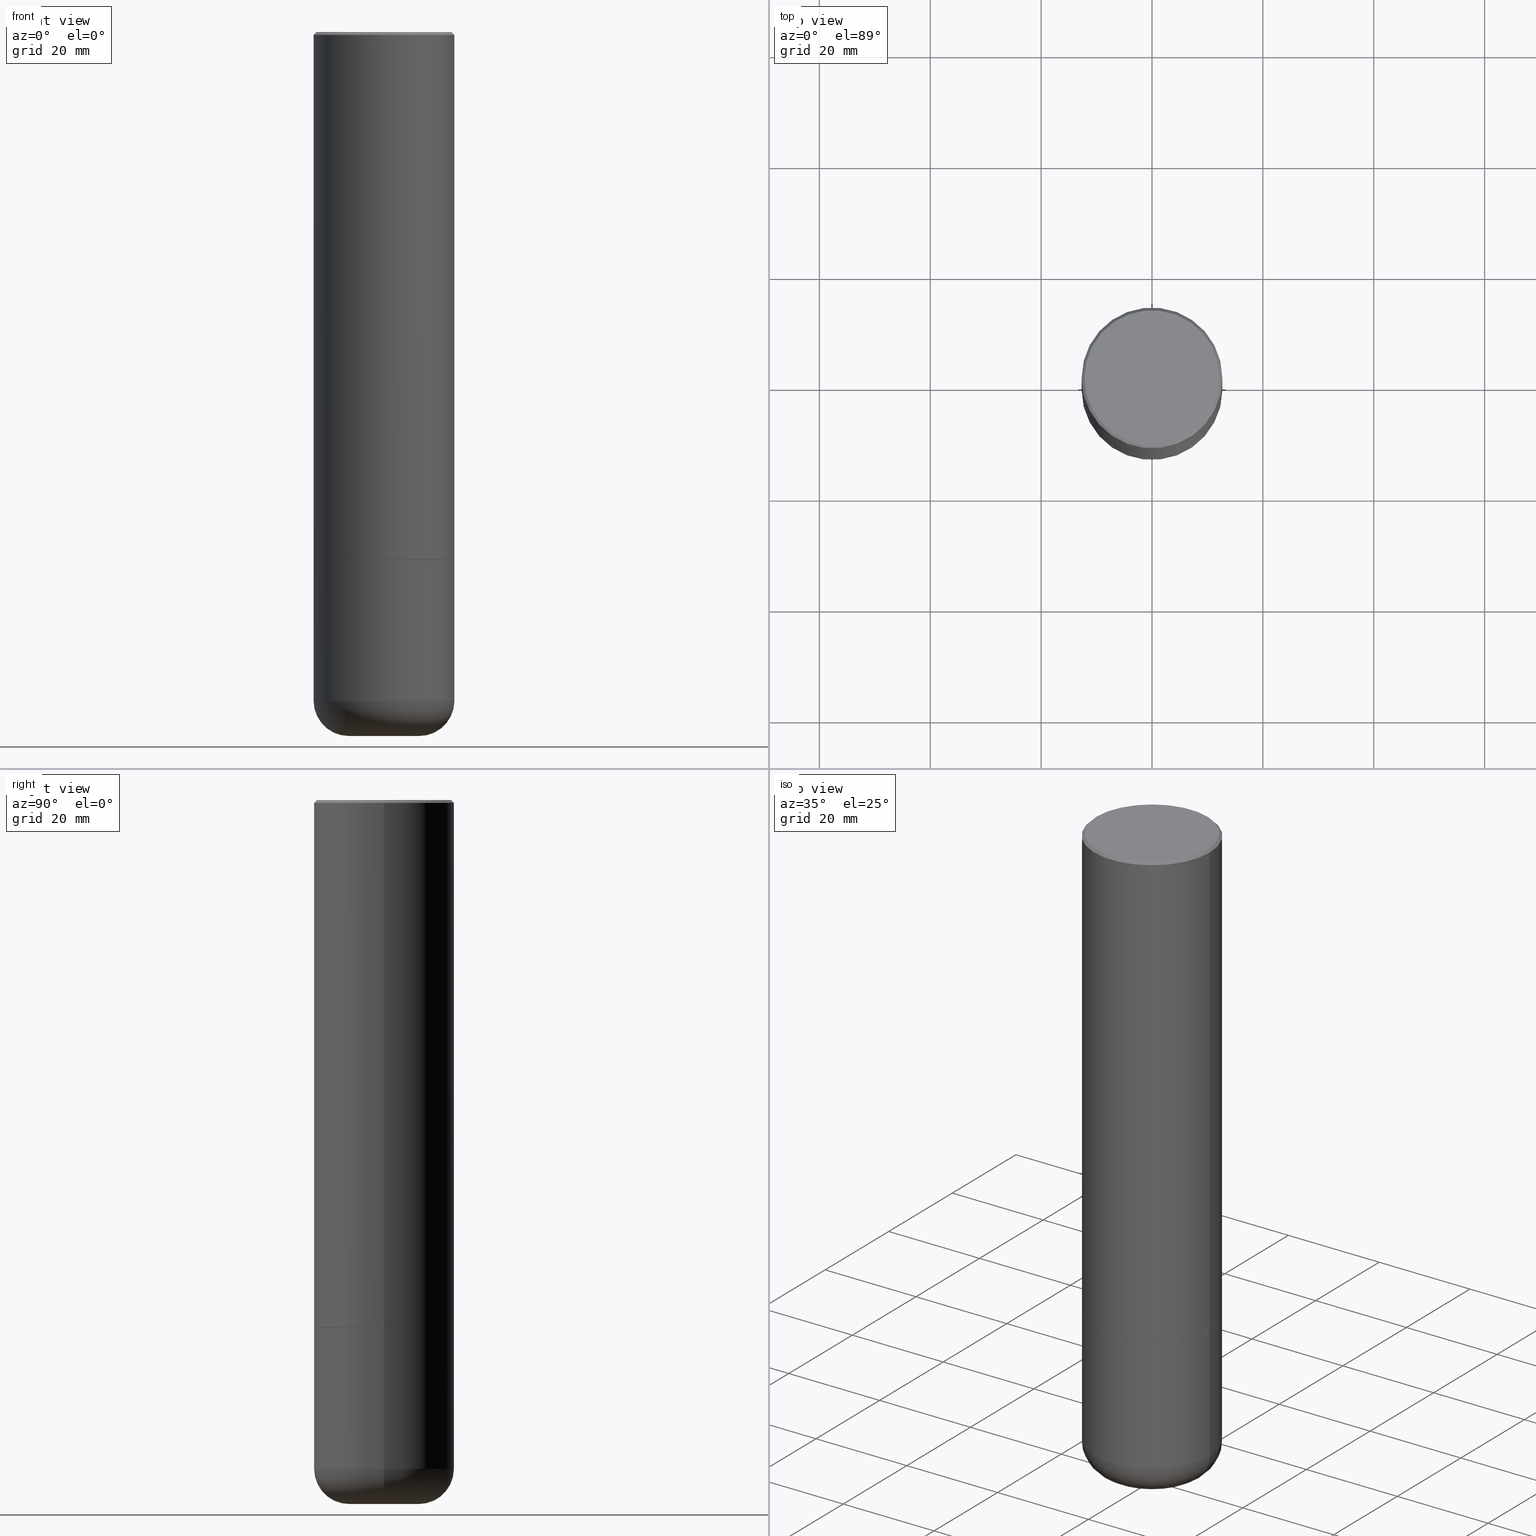
[diagram: canonical four-view strip — front | top / right | iso, engineering-drawing reading convention]
A machine part, canonical four-view strip (front | top / right | iso — engineering-drawing reading convention). The complete STEP part file that produces these views, byte-faithful:
ISO-10303-21;
HEADER;
FILE_DESCRIPTION (( 'STEP AP203' ),
    '1' );
FILE_NAME ('35736.STEP',
    '2022-11-02T20:56:48',
    ( '' ),
    ( '' ),
    'SwSTEP 2.0',
    'SolidWorks 2022',
    '' );
FILE_SCHEMA (( 'CONFIG_CONTROL_DESIGN' ));
ENDSEC;

DATA;
#1 = CARTESIAN_POINT ( 'NONE',  ( 9.170508023194262238E-29, -1.309305502066179741E-14, -3.750000000000000000 ) ) ;
#2 = CC_DESIGN_PERSON_AND_ORGANIZATION_ASSIGNMENT ( #217, #384, ( #455 ) ) ;
#3 = ORIENTED_EDGE ( 'NONE', *, *, #271, .T. ) ;
#4 = DIRECTION ( 'NONE',  ( -2.445468806185136597E-29, 3.491481338843145583E-15, 1.000000000000000000 ) ) ;
#5 = VECTOR ( 'NONE', #279, 39.37007874015748143 ) ;
#6 = AXIS2_PLACEMENT_3D ( 'NONE', #63, #133, #330 ) ;
#7 = CARTESIAN_POINT ( 'NONE',  ( -0.2478183661254081127, -1.436420360638221795E-14, -5.000000000000000000 ) ) ;
#8 = ORIENTED_EDGE ( 'NONE', *, *, #180, .F. ) ;
#9 = VERTEX_POINT ( 'NONE', #139 ) ;
#10 = EDGE_CURVE ( 'NONE', #30, #378, #394, .T. ) ;
#11 = AXIS2_PLACEMENT_3D ( 'NONE', #172, #182, #236 ) ;
#12 = ORIENTED_EDGE ( 'NONE', *, *, #340, .F. ) ;
#13 = UNCERTAINTY_MEASURE_WITH_UNIT (LENGTH_MEASURE( 1.000000000000000082E-05 ), #207, 'distance_accuracy_value', 'NONE');
#14 = DIRECTION ( 'NONE',  ( -2.445468806185136597E-29, 3.491481338843145583E-15, 1.000000000000000000 ) ) ;
#15 = MANIFOLD_SOLID_BREP ( 'Body-Move/Copy2[2]', #288 ) ;
#16 = ADVANCED_FACE ( 'NONE', ( #430 ), #406, .T. ) ;
#17 = ORIENTED_EDGE ( 'NONE', *, *, #107, .T. ) ;
#18 = CIRCLE ( 'NONE', #328, 0.4799999999999988165 ) ;
#19 = LOCAL_TIME ( 16, 56, 48.00000000000000000, #145 ) ;
#20 = CARTESIAN_POINT ( 'NONE',  ( 1.222734403092568523E-28, -1.745740669421572989E-14, -5.000000000000000000 ) ) ;
#21 = PERSON_AND_ORGANIZATION ( #265, #280 ) ;
#22 = ADVANCED_FACE ( 'NONE', ( #218 ), #181, .F. ) ;
#23 = CARTESIAN_POINT ( 'NONE',  ( 0.4999999999999997224, -3.491481338843131383E-15, 2.438088387897966495E-29 ) ) ;
#24 = PERSON_AND_ORGANIZATION ( #265, #280 ) ;
#25 = LOCAL_TIME ( 16, 56, 48.00000000000000000, #135 ) ;
#26 = ORIENTED_EDGE ( 'NONE', *, *, #180, .T. ) ;
#27 = DIRECTION ( 'NONE',  ( -2.445468806185136597E-29, 3.491481338843145583E-15, 1.000000000000000000 ) ) ;
#28 = DIRECTION ( 'NONE',  ( 1.000000000000000000, -6.982962677686268288E-15, 0.000000000000000000 ) ) ;
#29 = ORIENTED_EDGE ( 'NONE', *, *, #198, .T. ) ;
#30 = VERTEX_POINT ( 'NONE', #88 ) ;
#31 = LINE ( 'NONE', #183, #250 ) ;
#32 = CARTESIAN_POINT ( 'NONE',  ( -0.4999999999999994449, -1.128609862939673161E-14, -3.750000000000000000 ) ) ;
#33 = PLANE ( 'NONE',  #428 ) ;
#34 = DIRECTION ( 'NONE',  ( -1.000000000000000000, 6.982962677686264344E-15, 0.000000000000000000 ) ) ;
#35 = DIRECTION ( 'NONE',  ( -2.445468806185136597E-29, 3.491481338843145583E-15, 1.000000000000000000 ) ) ;
#36 = CIRCLE ( 'NONE', #305, 0.4989999999999994440 ) ;
#37 = VECTOR ( 'NONE', #147, 39.37007874015748143 ) ;
#38 = DIRECTION ( 'NONE',  ( 1.000000000000000000, -6.982962677686273021E-15, 0.000000000000000000 ) ) ;
#39 = FACE_OUTER_BOUND ( 'NONE', #232, .T. ) ;
#40 = DIRECTION ( 'NONE',  ( 1.000000000000000000, -6.982962677686266711E-15, 0.000000000000000000 ) ) ;
#41 = CARTESIAN_POINT ( 'NONE',  ( 0.4999999999999990563, -3.500078625662622769E-15, -0.02000000000000020164 ) ) ;
#42 = FACE_OUTER_BOUND ( 'NONE', #62, .T. ) ;
#43 = VERTEX_POINT ( 'NONE', #403 ) ;
#44 = EDGE_CURVE ( 'NONE', #136, #378, #249, .T. ) ;
#45 = FACE_OUTER_BOUND ( 'NONE', #190, .T. ) ;
#46 = CIRCLE ( 'NONE', #112, 0.2478183661254080850 ) ;
#47 = FACE_OUTER_BOUND ( 'NONE', #196, .T. ) ;
#48 = VERTEX_POINT ( 'NONE', #81 ) ;
#49 = PRODUCT_RELATED_PRODUCT_CATEGORY ( 'detail', '', ( #455 ) ) ;
#50 = DIRECTION ( 'NONE',  ( 0.7071067811865471286, -7.319954787623254468E-15, -0.7071067811865479058 ) ) ;
#51 = ORIENTED_EDGE ( 'NONE', *, *, #380, .T. ) ;
#52 = AXIS2_PLACEMENT_3D ( 'NONE', #476, #473, #431 ) ;
#53 = CC_DESIGN_SECURITY_CLASSIFICATION ( #451, ( #300 ) ) ;
#54 = ORIENTED_EDGE ( 'NONE', *, *, #144, .T. ) ;
#55 = ADVANCED_FACE ( 'NONE', ( #188 ), #405, .F. ) ;
#56 = ORIENTED_EDGE ( 'NONE', *, *, #352, .F. ) ;
#57 = VERTEX_POINT ( 'NONE', #7 ) ;
#58 = DIRECTION ( 'NONE',  ( 7.105427357601001859E-15, 1.000000000000000000, -3.491481338843145583E-15 ) ) ;
#59 = ORIENTED_EDGE ( 'NONE', *, *, #396, .T. ) ;
#60 = CONICAL_SURFACE ( 'NONE', #386, 0.4989999999999994440, 0.7853981633972775267 ) ;
#61 = PERSON_AND_ORGANIZATION ( #265, #280 ) ;
#62 = EDGE_LOOP ( 'NONE', ( #282, #413, #464, #331 ) ) ;
#63 = CARTESIAN_POINT ( 'NONE',  ( 9.170508023194263359E-29, -1.309305502066179899E-14, -3.750000000000000888 ) ) ;
#64 = ORIENTED_EDGE ( 'NONE', *, *, #380, .F. ) ;
#65 = APPROVAL_STATUS ( 'not_yet_approved' ) ;
#66 = DIRECTION ( 'NONE',  ( -1.000000000000000000, 6.982962677686266711E-15, 0.000000000000000000 ) ) ;
#67 = CARTESIAN_POINT ( 'NONE',  ( -0.2500000000000002776, -1.480821275633241089E-14, -4.750009519233957533 ) ) ;
#68 = CONICAL_SURFACE ( 'NONE', #474, 0.1944883661254080409, 1.535889741755012583 ) ;
#69 = CIRCLE ( 'NONE', #437, 0.5000000000000000000 ) ;
#70 = VERTEX_POINT ( 'NONE', #122 ) ;
#71 = APPROVAL_PERSON_ORGANIZATION ( #361, #134, #290 ) ;
#72 = DIRECTION ( 'NONE',  ( -0.7071067811864267805, 7.493145998869918709E-15, 0.7071067811866682540 ) ) ;
#73 = CARTESIAN_POINT ( 'NONE',  ( -0.4999999999999997224, 3.552713678800498957E-15, -2.459467545127451490E-29 ) ) ;
#74 = CARTESIAN_POINT ( 'NONE',  ( 1.222734403092568523E-28, -1.745740669421572989E-14, -5.000000000000000000 ) ) ;
#75 = DIRECTION ( 'NONE',  ( 1.000000000000000000, -6.982962677686266711E-15, 0.000000000000000000 ) ) ;
#76 = CARTESIAN_POINT ( 'NONE',  ( 0.4999999999999994449, -1.658104487816608303E-14, -3.749000000000000554 ) ) ;
#77 = ORIENTED_EDGE ( 'NONE', *, *, #79, .F. ) ;
#78 = DIRECTION ( 'NONE',  ( 1.000000000000000000, -6.982962677686266711E-15, 0.000000000000000000 ) ) ;
#79 = EDGE_CURVE ( 'NONE', #123, #349, #120, .T. ) ;
#80 = DIRECTION ( 'NONE',  ( 1.000000000000000000, -6.982962677686273021E-15, 0.000000000000000000 ) ) ;
#81 = CARTESIAN_POINT ( 'NONE',  ( -0.4999999999999999445, -1.128609862939673003E-14, -4.750009519233957533 ) ) ;
#82 = APPLICATION_CONTEXT ( 'configuration controlled 3d designs of mechanical parts and assemblies' ) ;
#83 = LINE ( 'NONE', #226, #233 ) ;
#84 = AXIS2_PLACEMENT_3D ( 'NONE', #355, #323, #286 ) ;
#85 = APPROVAL_PERSON_ORGANIZATION ( #248, #274, #466 ) ;
#86 = DIRECTION ( 'NONE',  ( -2.445468806185136597E-29, 3.491481338843145583E-15, 1.000000000000000000 ) ) ;
#87 = CARTESIAN_POINT ( 'NONE',  ( 0.000000000000000000, 0.000000000000000000, 0.000000000000000000 ) ) ;
#88 = CARTESIAN_POINT ( 'NONE',  ( 0.5000000000000000000, -2.007605093457579787E-14, -4.750009519233957533 ) ) ;
#89 = DIRECTION ( 'NONE',  ( -2.445468806185136597E-29, 3.491481338843145583E-15, 1.000000000000000000 ) ) ;
#90 = DIRECTION ( 'NONE',  ( -2.445468806185136597E-29, 3.491481338843145583E-15, 1.000000000000000000 ) ) ;
#91 = VECTOR ( 'NONE', #127, 39.37007874015748143 ) ;
#92 = CARTESIAN_POINT ( 'NONE',  ( 0.4999999999999990563, -3.500078625662622769E-15, -0.02000000000000020164 ) ) ;
#93 = ADVANCED_FACE ( 'NONE', ( #45 ), #68, .F. ) ;
#94 = ORIENTED_EDGE ( 'NONE', *, *, #366, .T. ) ;
#95 = ORIENTED_EDGE ( 'NONE', *, *, #185, .T. ) ;
#96 = VECTOR ( 'NONE', #412, 39.37007874015748143 ) ;
#97 = AXIS2_PLACEMENT_3D ( 'NONE', #67, #58, #141 ) ;
#98 = APPLICATION_PROTOCOL_DEFINITION ( 'international standard', 'config_control_design', 1994, #82 ) ;
#99 = ORIENTED_EDGE ( 'NONE', *, *, #324, .F. ) ;
#100 = CALENDAR_DATE ( 2022, 2, 11 ) ;
#101 = ORIENTED_EDGE ( 'NONE', *, *, #44, .T. ) ;
#102 = ORIENTED_EDGE ( 'NONE', *, *, #340, .T. ) ;
#103 = AXIS2_PLACEMENT_3D ( 'NONE', #398, #222, #66 ) ;
#104 = EDGE_CURVE ( 'NONE', #378, #136, #192, .T. ) ;
#105 = AXIS2_PLACEMENT_3D ( 'NONE', #169, #14, #270 ) ;
#106 = AXIS2_PLACEMENT_3D ( 'NONE', #326, #363, #34 ) ;
#107 = EDGE_CURVE ( 'NONE', #9, #163, #345, .T. ) ;
#108 = ORIENTED_EDGE ( 'NONE', *, *, #10, .T. ) ;
#109 = CARTESIAN_POINT ( 'NONE',  ( 9.168062554388078877E-29, -1.308956353932295441E-14, -3.749000000000000554 ) ) ;
#110 = EDGE_LOOP ( 'NONE', ( #376, #351, #51, #339 ) ) ;
#111 = ADVANCED_FACE ( 'NONE', ( #47 ), #458, .T. ) ;
#112 = AXIS2_PLACEMENT_3D ( 'NONE', #74, #27, #38 ) ;
#113 = EDGE_LOOP ( 'NONE', ( #284, #8 ) ) ;
#114 = DIRECTION ( 'NONE',  ( 1.000000000000000000, -6.982962677686268288E-15, 0.000000000000000000 ) ) ;
#115 = PRODUCT_DEFINITION_SHAPE ( 'NONE', 'NONE',  #263 ) ;
#116 = DIRECTION ( 'NONE',  ( 1.000000000000000000, -6.982962677686266711E-15, 0.000000000000000000 ) ) ;
#117 = CYLINDRICAL_SURFACE ( 'NONE', #484, 0.4999999999999992228 ) ;
#118 = CYLINDRICAL_SURFACE ( 'NONE', #475, 0.4999999999999997224 ) ;
#119 = FACE_OUTER_BOUND ( 'NONE', #385, .T. ) ;
#120 = LINE ( 'NONE', #371, #96 ) ;
#121 = ADVANCED_FACE ( 'NONE', ( #42 ), #60, .T. ) ;
#122 = CARTESIAN_POINT ( 'NONE',  ( 0.4989999999999994440, -1.657755339682724475E-14, -3.750000000000000888 ) ) ;
#123 = VERTEX_POINT ( 'NONE', #76 ) ;
#124 = CARTESIAN_POINT ( 'NONE',  ( -0.4989999999999994440, -9.542148314870680613E-15, -3.750000000000000888 ) ) ;
#125 = AXIS2_PLACEMENT_3D ( 'NONE', #109, #276, #383 ) ;
#126 = EDGE_LOOP ( 'NONE', ( #203, #239, #94, #372 ) ) ;
#127 = DIRECTION ( 'NONE',  ( -0.7071067811865471286, 2.468850131082252722E-15, -0.7071067811865479058 ) ) ;
#128 = CARTESIAN_POINT ( 'NONE',  ( 0.000000000000000000, 0.000000000000000000, 0.000000000000000000 ) ) ;
#129 = DIRECTION ( 'NONE',  ( -0.9993908270190957621, 6.856857904024565937E-15, -0.03489949670249840874 ) ) ;
#130 = EDGE_CURVE ( 'NONE', #425, #163, #223, .T. ) ;
#131 = DIRECTION ( 'NONE',  ( -2.445468806185136597E-29, 3.491481338843145583E-15, 1.000000000000000000 ) ) ;
#132 = VECTOR ( 'NONE', #129, 39.37007874015748854 ) ;
#133 = DIRECTION ( 'NONE',  ( -2.445468806185136597E-29, 3.491481338843145583E-15, 1.000000000000000000 ) ) ;
#134 = APPROVAL ( #327, 'UNSPECIFIED' ) ;
#135 = COORDINATED_UNIVERSAL_TIME_OFFSET ( 5, 0, .BEHIND. ) ;
#136 = VERTEX_POINT ( 'NONE', #32 ) ;
#137 = ORIENTED_EDGE ( 'NONE', *, *, #144, .F. ) ;
#138 = ORIENTED_EDGE ( 'NONE', *, *, #104, .T. ) ;
#139 = CARTESIAN_POINT ( 'NONE',  ( -0.1944883661254080409, -1.609767674342811881E-14, -4.999534596140719600 ) ) ;
#140 = VECTOR ( 'NONE', #72, 39.37007874015748143 ) ;
#141 = DIRECTION ( 'NONE',  ( -1.000000000000000000, 7.105427357601000281E-15, 0.000000000000000000 ) ) ;
#142 = APPLICATION_CONTEXT ( 'configuration controlled 3d designs of mechanical parts and assemblies' ) ;
#143 = DIRECTION ( 'NONE',  ( -2.445468806185136597E-29, 3.491481338843145583E-15, 1.000000000000000000 ) ) ;
#144 = EDGE_CURVE ( 'NONE', #447, #349, #449, .T. ) ;
#145 = COORDINATED_UNIVERSAL_TIME_OFFSET ( 5, 0, .BEHIND. ) ;
#146 = EDGE_CURVE ( 'NONE', #163, #162, #153, .T. ) ;
#147 = DIRECTION ( 'NONE',  ( -2.445468806185136877E-29, 3.491481338843145188E-15, 1.000000000000000000 ) ) ;
#148 = DIRECTION ( 'NONE',  ( -2.445468806185136597E-29, 3.491481338843145583E-15, 1.000000000000000000 ) ) ;
#149 = DATE_AND_TIME ( #478, #357 ) ;
#150 = CARTESIAN_POINT ( 'NONE',  ( 9.168062554388078877E-29, -1.308956353932295441E-14, -3.749000000000000554 ) ) ;
#151 = FACE_OUTER_BOUND ( 'NONE', #113, .T. ) ;
#152 = DIRECTION ( 'NONE',  ( 1.000000000000000000, -6.982962677686266711E-15, 0.000000000000000000 ) ) ;
#153 = LINE ( 'NONE', #296, #240 ) ;
#154 = CALENDAR_DATE ( 2022, 2, 11 ) ;
#155 = CARTESIAN_POINT ( 'NONE',  ( 1.222620590030553347E-28, -1.745578174532602389E-14, -4.999534596140719600 ) ) ;
#156 = DIRECTION ( 'NONE',  ( 0.9993908270190957621, -6.978169709227532810E-15, -0.03489949670249840874 ) ) ;
#157 = ORIENTED_EDGE ( 'NONE', *, *, #488, .T. ) ;
#158 = DIRECTION ( 'NONE',  ( 1.000000000000000000, -6.982962677686265133E-15, 4.883557194083112340E-29 ) ) ;
#159 = FACE_OUTER_BOUND ( 'NONE', #206, .T. ) ;
#160 = VECTOR ( 'NONE', #50, 39.37007874015748143 ) ;
#161 = FACE_OUTER_BOUND ( 'NONE', #468, .T. ) ;
#162 = VERTEX_POINT ( 'NONE', #440 ) ;
#163 = VERTEX_POINT ( 'NONE', #247 ) ;
#164 = DIRECTION ( 'NONE',  ( 1.000000000000000000, -6.982962677686267499E-15, 4.876431871984425487E-29 ) ) ;
#165 = ORIENTED_EDGE ( 'NONE', *, *, #146, .T. ) ;
#166 = AXIS2_PLACEMENT_3D ( 'NONE', #402, #483, #116 ) ;
#167 = AXIS2_PLACEMENT_3D ( 'NONE', #235, #275, #197 ) ;
#168 = CC_DESIGN_DATE_AND_TIME_ASSIGNMENT ( #260, #184, ( #451 ) ) ;
#169 = CARTESIAN_POINT ( 'NONE',  ( 1.222620590030553347E-28, -1.745578174532602389E-14, -4.999534596140719600 ) ) ;
#170 = CYLINDRICAL_SURFACE ( 'NONE', #257, 0.4999999999999997224 ) ;
#171 = CONICAL_SURFACE ( 'NONE', #194, 0.2478183661254080850, 1.562069680534929894 ) ;
#172 = CARTESIAN_POINT ( 'NONE',  ( 0.000000000000000000, 0.000000000000000000, 0.000000000000000000 ) ) ;
#173 = FACE_OUTER_BOUND ( 'NONE', #243, .T. ) ;
#174 = MANIFOLD_SOLID_BREP ( 'Body-Move/Copy2[1]', #219 ) ;
#175 = PERSON_AND_ORGANIZATION_ROLE ( 'creator' ) ;
#176 = ORIENTED_EDGE ( 'NONE', *, *, #130, .F. ) ;
#177 = PERSON_AND_ORGANIZATION_ROLE ( 'classification_officer' ) ;
#178 = CIRCLE ( 'NONE', #220, 0.2478183661254080850 ) ;
#179 = APPROVAL_STATUS ( 'not_yet_approved' ) ;
#180 = EDGE_CURVE ( 'NONE', #392, #70, #36, .T. ) ;
#181 = PLANE ( 'NONE',  #84 ) ;
#182 = DIRECTION ( 'NONE',  ( 0.000000000000000000, 0.000000000000000000, 1.000000000000000000 ) ) ;
#183 = CARTESIAN_POINT ( 'NONE',  ( -0.2478183661254080850, -1.572690029271681563E-14, -5.000000000000000000 ) ) ;
#184 = DATE_TIME_ROLE ( 'classification_date' ) ;
#185 = EDGE_CURVE ( 'NONE', #30, #48, #365, .T. ) ;
#186 = DIRECTION ( 'NONE',  ( -2.438088387897960049E-29, 3.491481338843145188E-15, 1.000000000000000000 ) ) ;
#187 = AXIS2_PLACEMENT_3D ( 'NONE', #252, #294, #292 ) ;
#188 = FACE_OUTER_BOUND ( 'NONE', #237, .T. ) ;
#189 = DIRECTION ( 'NONE',  ( 1.000000000000000000, -6.982962677686267499E-15, 4.876431871984425487E-29 ) ) ;
#190 = EDGE_LOOP ( 'NONE', ( #99, #472, #317 ) ) ;
#191 = ADVANCED_FACE ( 'NONE', ( #151 ), #33, .F. ) ;
#192 = CIRCLE ( 'NONE', #256, 0.4999999999999994449 ) ;
#193 = CC_DESIGN_PERSON_AND_ORGANIZATION_ASSIGNMENT ( #316, #471, ( #300 ) ) ;
#194 = AXIS2_PLACEMENT_3D ( 'NONE', #20, #465, #336 ) ;
#195 = VERTEX_POINT ( 'NONE', #404 ) ;
#196 = EDGE_LOOP ( 'NONE', ( #269, #26, #29, #268 ) ) ;
#197 = DIRECTION ( 'NONE',  ( 1.000000000000000000, -6.982962677686265133E-15, 4.883557194083112340E-29 ) ) ;
#198 = EDGE_CURVE ( 'NONE', #70, #123, #83, .T. ) ;
#199 = AXIS2_PLACEMENT_3D ( 'NONE', #1, #261, #152 ) ;
#200 = ADVANCED_FACE ( 'NONE', ( #39 ), #118, .T. ) ;
#201 = AXIS2_PLACEMENT_3D ( 'NONE', #229, #302, #453 ) ;
#202 = ADVANCED_FACE ( 'NONE', ( #159 ), #297, .T. ) ;
#203 = ORIENTED_EDGE ( 'NONE', *, *, #146, .F. ) ;
#204 = DIRECTION ( 'NONE',  ( 1.000000000000000000, -6.982962677686267499E-15, 4.876176775795935793E-29 ) ) ;
#205 = ORIENTED_EDGE ( 'NONE', *, *, #358, .T. ) ;
#206 = EDGE_LOOP ( 'NONE', ( #452, #321, #418, #12 ) ) ;
#207 =( CONVERSION_BASED_UNIT ( 'INCH', #397 ) LENGTH_UNIT ( ) NAMED_UNIT ( #445 ) );
#208 = AXIS2_PLACEMENT_3D ( 'NONE', #155, #90, #375 ) ;
#209 = AXIS2_PLACEMENT_3D ( 'NONE', #259, #377, #158 ) ;
#210 = CC_DESIGN_APPROVAL ( #134, ( #451 ) ) ;
#211 = ADVANCED_FACE ( 'NONE', ( #395 ), #171, .F. ) ;
#212 = ORIENTED_EDGE ( 'NONE', *, *, #366, .F. ) ;
#213 = SECURITY_CLASSIFICATION_LEVEL ( 'unclassified' ) ;
#214 = EDGE_LOOP ( 'NONE', ( #3, #59 ) ) ;
#215 = LINE ( 'NONE', #283, #140 ) ;
#216 = ADVANCED_FACE ( 'NONE', ( #173 ), #459, .T. ) ;
#217 = PERSON_AND_ORGANIZATION ( #265, #280 ) ;
#218 = FACE_OUTER_BOUND ( 'NONE', #214, .T. ) ;
#219 = CLOSED_SHELL ( 'NONE', ( #211, #417, #254, #93, #410, #55, #200, #202, #329 ) ) ;
#220 = AXIS2_PLACEMENT_3D ( 'NONE', #415, #470, #80 ) ;
#221 =( NAMED_UNIT ( * ) PLANE_ANGLE_UNIT ( ) SI_UNIT ( $, .RADIAN. ) );
#222 = DIRECTION ( 'NONE',  ( 2.445468806185136597E-29, -3.491481338843145583E-15, -1.000000000000000000 ) ) ;
#223 = LINE ( 'NONE', #360, #318 ) ;
#224 = CC_DESIGN_PERSON_AND_ORGANIZATION_ASSIGNMENT ( #350, #177, ( #451 ) ) ;
#225 = DIRECTION ( 'NONE',  ( 2.445468806185136597E-29, -3.491481338843145583E-15, -1.000000000000000000 ) ) ;
#226 = CARTESIAN_POINT ( 'NONE',  ( 0.4989999999999994440, -1.657755339682724475E-14, -3.750000000000000888 ) ) ;
#227 = DIRECTION ( 'NONE',  ( -2.445468806185136597E-29, 3.491481338843145583E-15, 1.000000000000000000 ) ) ;
#228 = EDGE_LOOP ( 'NONE', ( #307, #205, #64, #77 ) ) ;
#229 = CARTESIAN_POINT ( 'NONE',  ( 0.000000000000000000, 0.000000000000000000, 0.000000000000000000 ) ) ;
#230 = CARTESIAN_POINT ( 'NONE',  ( 4.890937612370322204E-31, -6.982962677686361867E-17, -0.02000000000000020164 ) ) ;
#231 = ORIENTED_EDGE ( 'NONE', *, *, #271, .F. ) ;
#232 = EDGE_LOOP ( 'NONE', ( #389, #102, #108, #238 ) ) ;
#233 = VECTOR ( 'NONE', #367, 39.37007874015748143 ) ;
#234 =( GEOMETRIC_REPRESENTATION_CONTEXT ( 3 ) GLOBAL_UNCERTAINTY_ASSIGNED_CONTEXT ( ( #13 ) ) GLOBAL_UNIT_ASSIGNED_CONTEXT ( ( #207, #221, #393 ) ) REPRESENTATION_CONTEXT ( 'NONE', 'WORKASPACE' ) );
#235 = CARTESIAN_POINT ( 'NONE',  ( 1.161600010836909978E-28, -1.658456959573266451E-14, -4.750009519233957533 ) ) ;
#236 = DIRECTION ( 'NONE',  ( 1.000000000000000000, 0.000000000000000000, 0.000000000000000000 ) ) ;
#237 = EDGE_LOOP ( 'NONE', ( #138, #101 ) ) ;
#238 = ORIENTED_EDGE ( 'NONE', *, *, #44, .F. ) ;
#239 = ORIENTED_EDGE ( 'NONE', *, *, #434, .T. ) ;
#240 = VECTOR ( 'NONE', #287, 39.37007874015748854 ) ;
#241 = ADVANCED_BREP_SHAPE_REPRESENTATION ( '35736', ( #174, #15, #11 ), #234 ) ;
#242 = ORIENTED_EDGE ( 'NONE', *, *, #295, .T. ) ;
#243 = EDGE_LOOP ( 'NONE', ( #304, #231, #242, #54 ) ) ;
#244 = EDGE_CURVE ( 'NONE', #319, #349, #334, .T. ) ;
#245 = CARTESIAN_POINT ( 'NONE',  ( 1.161600010836909978E-28, -1.658456959573266451E-14, -4.750009519233957533 ) ) ;
#246 = ORIENTED_EDGE ( 'NONE', *, *, #434, .F. ) ;
#247 = CARTESIAN_POINT ( 'NONE',  ( 0.1944883661254080409, -1.879006879171924334E-14, -4.999534596140719600 ) ) ;
#248 = PERSON_AND_ORGANIZATION ( #265, #280 ) ;
#249 = CIRCLE ( 'NONE', #199, 0.4999999999999994449 ) ;
#250 = VECTOR ( 'NONE', #482, 39.37007874015748854 ) ;
#251 = LOCAL_TIME ( 16, 56, 48.00000000000000000, #486 ) ;
#252 = CARTESIAN_POINT ( 'NONE',  ( 4.890937612370322204E-31, -6.982962677686361867E-17, -0.02000000000000020164 ) ) ;
#253 = DIRECTION ( 'NONE',  ( 1.000000000000000000, -6.982962677686265922E-15, 4.876176775795935793E-29 ) ) ;
#254 = ADVANCED_FACE ( 'NONE', ( #341 ), #170, .T. ) ;
#255 = CARTESIAN_POINT ( 'NONE',  ( 0.000000000000000000, 0.000000000000000000, 0.000000000000000000 ) ) ;
#256 = AXIS2_PLACEMENT_3D ( 'NONE', #364, #35, #487 ) ;
#257 = AXIS2_PLACEMENT_3D ( 'NONE', #128, #461, #420 ) ;
#258 = EDGE_LOOP ( 'NONE', ( #277, #157, #426, #416 ) ) ;
#259 = CARTESIAN_POINT ( 'NONE',  ( 1.161600010836909978E-28, -1.658456959573266451E-14, -4.750009519233957533 ) ) ;
#260 = DATE_AND_TIME ( #154, #251 ) ;
#261 = DIRECTION ( 'NONE',  ( -2.445468806185136597E-29, 3.491481338843145583E-15, 1.000000000000000000 ) ) ;
#262 = ORIENTED_EDGE ( 'NONE', *, *, #10, .F. ) ;
#263 = PRODUCT_DEFINITION ( 'UNKNOWN', '', #300, #382 ) ;
#264 = AXIS2_PLACEMENT_3D ( 'NONE', #463, #436, #356 ) ;
#265 = PERSON ( 'UNSPECIFIED', 'UNSPECIFIED', 'UNSPECIFIED', ('UNSPECIFIED'), ('UNSPECIFIED'), ('UNSPECIFIED') ) ;
#266 = CIRCLE ( 'NONE', #105, 0.1944883661254080409 ) ;
#267 = CARTESIAN_POINT ( 'NONE',  ( -0.4999999999999990563, 3.421651712066262957E-15, -0.02000000000000020164 ) ) ;
#268 = ORIENTED_EDGE ( 'NONE', *, *, #477, .F. ) ;
#269 = ORIENTED_EDGE ( 'NONE', *, *, #347, .F. ) ;
#270 = DIRECTION ( 'NONE',  ( 1.000000000000000000, -6.982962677686264344E-15, 0.000000000000000000 ) ) ;
#271 = EDGE_CURVE ( 'NONE', #43, #319, #379, .T. ) ;
#272 = AXIS2_PLACEMENT_3D ( 'NONE', #308, #381, #337 ) ;
#273 = CC_DESIGN_APPROVAL ( #454, ( #300 ) ) ;
#274 = APPROVAL ( #179, 'UNSPECIFIED' ) ;
#275 = DIRECTION ( 'NONE',  ( -2.445468806185136597E-29, 3.491481338843145583E-15, 1.000000000000000000 ) ) ;
#276 = DIRECTION ( 'NONE',  ( -2.445468806185136597E-29, 3.491481338843145583E-15, 1.000000000000000000 ) ) ;
#277 = ORIENTED_EDGE ( 'NONE', *, *, #298, .T. ) ;
#278 = ORIENTED_EDGE ( 'NONE', *, *, #477, .T. ) ;
#279 = DIRECTION ( 'NONE',  ( -2.445468806185136877E-29, 3.491481338843145188E-15, 1.000000000000000000 ) ) ;
#280 = ORGANIZATION ( 'UNSPECIFIED', 'UNSPECIFIED', '' ) ;
#281 = DIRECTION ( 'NONE',  ( 2.445468806185136597E-29, -3.491481338843145583E-15, -1.000000000000000000 ) ) ;
#282 = ORIENTED_EDGE ( 'NONE', *, *, #467, .T. ) ;
#283 = CARTESIAN_POINT ( 'NONE',  ( -0.4989999999999994440, -9.547446769218903015E-15, -3.750000000000000888 ) ) ;
#284 = ORIENTED_EDGE ( 'NONE', *, *, #467, .F. ) ;
#285 = DATE_AND_TIME ( #100, #19 ) ;
#286 = DIRECTION ( 'NONE',  ( -1.000000000000000000, 6.982962677686265922E-15, -4.876176775795935793E-29 ) ) ;
#287 = DIRECTION ( 'NONE',  ( 0.9999619230641714207, -6.890705306874825328E-15, -0.008726535498369011531 ) ) ;
#288 = CLOSED_SHELL ( 'NONE', ( #121, #432, #16, #216, #390, #111, #191, #22 ) ) ;
#289 = CONICAL_SURFACE ( 'NONE', #306, 0.2478183661254080850, 1.562069680534929894 ) ;
#290 = APPROVAL_ROLE ( '' ) ;
#291 = CARTESIAN_POINT ( 'NONE',  ( 0.4999999999999994449, -1.658453635950492761E-14, -3.750000000000000000 ) ) ;
#292 = DIRECTION ( 'NONE',  ( 1.000000000000000000, -6.982962677686266711E-15, 0.000000000000000000 ) ) ;
#293 = CARTESIAN_POINT ( 'NONE',  ( 3.491481338843220919E-15, 0.4999999999999863443, -3.750000000000001776 ) ) ;
#294 = DIRECTION ( 'NONE',  ( -2.445468806185136597E-29, 3.491481338843145583E-15, 1.000000000000000000 ) ) ;
#295 = EDGE_CURVE ( 'NONE', #43, #447, #457, .T. ) ;
#296 = CARTESIAN_POINT ( 'NONE',  ( 0.2478183661254080850, -1.915756409883010398E-14, -5.000000000000000000 ) ) ;
#297 = TOROIDAL_SURFACE ( 'NONE', #167, 0.2500000000000002776, 0.2499999999999998612 ) ;
#298 = EDGE_CURVE ( 'NONE', #162, #57, #178, .T. ) ;
#299 = CIRCLE ( 'NONE', #52, 0.2499999999999998612 ) ;
#300 = PRODUCT_DEFINITION_FORMATION_WITH_SPECIFIED_SOURCE ( 'ANY', '', #455, .NOT_KNOWN. ) ;
#301 = DIRECTION ( 'NONE',  ( 2.438088387897960049E-29, -3.491481338843145188E-15, -1.000000000000000000 ) ) ;
#302 = DIRECTION ( 'NONE',  ( -2.445468806185136597E-29, 3.491481338843145583E-15, 1.000000000000000000 ) ) ;
#303 = DIRECTION ( 'NONE',  ( -1.000000000000000000, 6.982962677686264344E-15, 0.000000000000000000 ) ) ;
#304 = ORIENTED_EDGE ( 'NONE', *, *, #244, .F. ) ;
#305 = AXIS2_PLACEMENT_3D ( 'NONE', #407, #438, #114 ) ;
#306 = AXIS2_PLACEMENT_3D ( 'NONE', #400, #281, #480 ) ;
#307 = ORIENTED_EDGE ( 'NONE', *, *, #369, .T. ) ;
#308 = CARTESIAN_POINT ( 'NONE',  ( 4.890937612370322204E-31, -6.982962677686361867E-17, -0.02000000000000020164 ) ) ;
#309 = LINE ( 'NONE', #73, #346 ) ;
#310 = ORIENTED_EDGE ( 'NONE', *, *, #399, .T. ) ;
#311 = CC_DESIGN_PERSON_AND_ORGANIZATION_ASSIGNMENT ( #24, #427, ( #263 ) ) ;
#312 = CARTESIAN_POINT ( 'NONE',  ( -4.175405657340879278E-46, 5.961372681521788801E-32, 1.707404996040164512E-17 ) ) ;
#313 = AXIS2_PLACEMENT_3D ( 'NONE', #293, #301, #373 ) ;
#314 = CIRCLE ( 'NONE', #332, 0.4999999999999994449 ) ;
#315 = MECHANICAL_CONTEXT ( 'NONE', #82, 'mechanical' ) ;
#316 = PERSON_AND_ORGANIZATION ( #265, #280 ) ;
#317 = ORIENTED_EDGE ( 'NONE', *, *, #107, .F. ) ;
#318 = VECTOR ( 'NONE', #156, 39.37007874015748854 ) ;
#319 = VERTEX_POINT ( 'NONE', #343 ) ;
#320 = CIRCLE ( 'NONE', #6, 0.4989999999999994440 ) ;
#321 = ORIENTED_EDGE ( 'NONE', *, *, #352, .T. ) ;
#322 = APPROVAL_ROLE ( '' ) ;
#323 = DIRECTION ( 'NONE',  ( 2.438088387897960049E-29, -3.491481338843145188E-15, -1.000000000000000000 ) ) ;
#324 = EDGE_CURVE ( 'NONE', #425, #9, #342, .T. ) ;
#325 = CARTESIAN_POINT ( 'NONE',  ( -0.4999999999999992228, 3.552713678800495407E-15, -2.459467545127449248E-29 ) ) ;
#326 = CARTESIAN_POINT ( 'NONE',  ( 1.222620590030553347E-28, -1.745578174532602389E-14, -4.999534596140719600 ) ) ;
#327 = APPROVAL_STATUS ( 'not_yet_approved' ) ;
#328 = AXIS2_PLACEMENT_3D ( 'NONE', #411, #89, #189 ) ;
#329 = ADVANCED_FACE ( 'NONE', ( #353 ), #289, .F. ) ;
#330 = DIRECTION ( 'NONE',  ( 1.000000000000000000, -6.982962677686268288E-15, 0.000000000000000000 ) ) ;
#331 = ORIENTED_EDGE ( 'NONE', *, *, #198, .F. ) ;
#332 = AXIS2_PLACEMENT_3D ( 'NONE', #150, #401, #78 ) ;
#333 = CARTESIAN_POINT ( 'NONE',  ( 1.222620590030553347E-28, -1.745578174532602389E-14, -4.999534596140719600 ) ) ;
#334 = LINE ( 'NONE', #92, #160 ) ;
#335 = EDGE_CURVE ( 'NONE', #162, #30, #299, .T. ) ;
#336 = DIRECTION ( 'NONE',  ( -1.000000000000000000, 6.982962677686265133E-15, 0.000000000000000000 ) ) ;
#337 = DIRECTION ( 'NONE',  ( -1.000000000000000000, 6.982962677686266711E-15, 0.000000000000000000 ) ) ;
#338 = CC_DESIGN_APPROVAL ( #274, ( #263 ) ) ;
#339 = ORIENTED_EDGE ( 'NONE', *, *, #295, .F. ) ;
#340 = EDGE_CURVE ( 'NONE', #48, #30, #69, .T. ) ;
#341 = FACE_OUTER_BOUND ( 'NONE', #435, .T. ) ;
#342 = LINE ( 'NONE', #469, #132 ) ;
#343 = CARTESIAN_POINT ( 'NONE',  ( 0.4799999999999988165, -3.396558832296475394E-15, 1.707404996042524007E-17 ) ) ;
#344 =( LENGTH_UNIT ( ) NAMED_UNIT ( * ) SI_UNIT ( $, .METRE. ) );
#345 = CIRCLE ( 'NONE', #208, 0.1944883661254080409 ) ;
#346 = VECTOR ( 'NONE', #444, 39.37007874015748143 ) ;
#347 = EDGE_CURVE ( 'NONE', #392, #195, #215, .T. ) ;
#348 = APPROVAL_DATE_TIME ( #285, #454 ) ;
#349 = VERTEX_POINT ( 'NONE', #41 ) ;
#350 = PERSON_AND_ORGANIZATION ( #265, #280 ) ;
#351 = ORIENTED_EDGE ( 'NONE', *, *, #244, .T. ) ;
#352 = EDGE_CURVE ( 'NONE', #57, #162, #46, .T. ) ;
#353 = FACE_OUTER_BOUND ( 'NONE', #126, .T. ) ;
#354 = APPLICATION_PROTOCOL_DEFINITION ( 'international standard', 'config_control_design', 1994, #142 ) ;
#355 = CARTESIAN_POINT ( 'NONE',  ( 3.351822085289399659E-15, 0.4799999999999988165, -1.667374017664504893E-15 ) ) ;
#356 = DIRECTION ( 'NONE',  ( 1.000000000000000000, -6.982962677686268288E-15, 0.000000000000000000 ) ) ;
#357 = LOCAL_TIME ( 16, 56, 48.00000000000000000, #481 ) ;
#358 = EDGE_CURVE ( 'NONE', #195, #447, #362, .T. ) ;
#359 = CC_DESIGN_PERSON_AND_ORGANIZATION_ASSIGNMENT ( #21, #175, ( #300 ) ) ;
#360 = CARTESIAN_POINT ( 'NONE',  ( 0.1944883661254080409, -1.879006879171924334E-14, -4.999534596140719600 ) ) ;
#361 = PERSON_AND_ORGANIZATION ( #265, #280 ) ;
#362 = LINE ( 'NONE', #325, #37 ) ;
#363 = DIRECTION ( 'NONE',  ( 2.445468806185136597E-29, -3.491481338843145583E-15, -1.000000000000000000 ) ) ;
#364 = CARTESIAN_POINT ( 'NONE',  ( 9.170508023194262238E-29, -1.309305502066179741E-14, -3.750000000000000000 ) ) ;
#365 = CIRCLE ( 'NONE', #166, 0.5000000000000000000 ) ;
#366 = EDGE_CURVE ( 'NONE', #9, #57, #31, .T. ) ;
#367 = DIRECTION ( 'NONE',  ( 0.7071067811864267805, -2.468850131080992517E-15, 0.7071067811866682540 ) ) ;
#368 = CIRCLE ( 'NONE', #450, 0.4999999999999990563 ) ;
#369 = EDGE_CURVE ( 'NONE', #123, #195, #314, .T. ) ;
#370 = FACE_OUTER_BOUND ( 'NONE', #258, .T. ) ;
#371 = CARTESIAN_POINT ( 'NONE',  ( 0.4999999999999992228, -3.491481338843128228E-15, 2.438088387897963973E-29 ) ) ;
#372 = ORIENTED_EDGE ( 'NONE', *, *, #298, .F. ) ;
#373 = DIRECTION ( 'NONE',  ( -1.000000000000000000, 6.982962677686265922E-15, -4.876176775795935793E-29 ) ) ;
#374 = TOROIDAL_SURFACE ( 'NONE', #209, 0.2500000000000002776, 0.2499999999999998612 ) ;
#375 = DIRECTION ( 'NONE',  ( 1.000000000000000000, -6.982962677686264344E-15, 0.000000000000000000 ) ) ;
#376 = ORIENTED_EDGE ( 'NONE', *, *, #396, .F. ) ;
#377 = DIRECTION ( 'NONE',  ( -2.445468806185136597E-29, 3.491481338843145583E-15, 1.000000000000000000 ) ) ;
#378 = VERTEX_POINT ( 'NONE', #291 ) ;
#379 = CIRCLE ( 'NONE', #429, 0.4799999999999988165 ) ;
#380 = EDGE_CURVE ( 'NONE', #349, #447, #368, .T. ) ;
#381 = DIRECTION ( 'NONE',  ( 2.445468806185136597E-29, -3.491481338843145583E-15, -1.000000000000000000 ) ) ;
#382 = DESIGN_CONTEXT ( 'detailed design', #142, 'design' ) ;
#383 = DIRECTION ( 'NONE',  ( 1.000000000000000000, -6.982962677686266711E-15, 0.000000000000000000 ) ) ;
#384 = PERSON_AND_ORGANIZATION_ROLE ( 'design_owner' ) ;
#385 = EDGE_LOOP ( 'NONE', ( #176, #479, #246 ) ) ;
#386 = AXIS2_PLACEMENT_3D ( 'NONE', #408, #148, #28 ) ;
#387 = CIRCLE ( 'NONE', #97, 0.2499999999999998612 ) ;
#388 = LOCAL_TIME ( 16, 56, 48.00000000000000000, #441 ) ;
#389 = ORIENTED_EDGE ( 'NONE', *, *, #399, .F. ) ;
#390 = ADVANCED_FACE ( 'NONE', ( #161 ), #448, .T. ) ;
#391 = APPROVAL_DATE_TIME ( #433, #274 ) ;
#392 = VERTEX_POINT ( 'NONE', #124 ) ;
#393 =( NAMED_UNIT ( * ) SI_UNIT ( $, .STERADIAN. ) SOLID_ANGLE_UNIT ( ) );
#394 = LINE ( 'NONE', #23, #5 ) ;
#395 = FACE_OUTER_BOUND ( 'NONE', #424, .T. ) ;
#396 = EDGE_CURVE ( 'NONE', #319, #43, #18, .T. ) ;
#397 = LENGTH_MEASURE_WITH_UNIT ( LENGTH_MEASURE( 0.02539999999999999897 ), #344 );
#398 = CARTESIAN_POINT ( 'NONE',  ( 4.890937612370322204E-31, -6.982962677686361867E-17, -0.02000000000000020164 ) ) ;
#399 = EDGE_CURVE ( 'NONE', #48, #136, #309, .T. ) ;
#400 = CARTESIAN_POINT ( 'NONE',  ( 1.222734403092568523E-28, -1.745740669421572989E-14, -5.000000000000000000 ) ) ;
#401 = DIRECTION ( 'NONE',  ( -2.445468806185136597E-29, 3.491481338843145583E-15, 1.000000000000000000 ) ) ;
#402 = CARTESIAN_POINT ( 'NONE',  ( 1.161600010836909978E-28, -1.658456959573266451E-14, -4.750009519233957533 ) ) ;
#403 = CARTESIAN_POINT ( 'NONE',  ( -0.4799999999999988165, 3.386736898677831703E-15, 1.707404996037808406E-17 ) ) ;
#404 = CARTESIAN_POINT ( 'NONE',  ( -0.4999999999999994449, -3.026982904249409106E-15, -3.749000000000000554 ) ) ;
#405 = PLANE ( 'NONE',  #313 ) ;
#406 = CONICAL_SURFACE ( 'NONE', #103, 0.4999999999999990563, 0.7853981633974477239 ) ;
#407 = CARTESIAN_POINT ( 'NONE',  ( 9.170508023194263359E-29, -1.309305502066179899E-14, -3.750000000000000888 ) ) ;
#408 = CARTESIAN_POINT ( 'NONE',  ( 9.170508023194263359E-29, -1.309305502066179899E-14, -3.750000000000000888 ) ) ;
#409 = ORIENTED_EDGE ( 'NONE', *, *, #358, .F. ) ;
#410 = ADVANCED_FACE ( 'NONE', ( #119 ), #414, .F. ) ;
#411 = CARTESIAN_POINT ( 'NONE',  ( -4.175405657340879278E-46, 5.961372681521788801E-32, 1.707404996040164512E-17 ) ) ;
#412 = DIRECTION ( 'NONE',  ( -2.445468806185136877E-29, 3.491481338843145188E-15, 1.000000000000000000 ) ) ;
#413 = ORIENTED_EDGE ( 'NONE', *, *, #347, .T. ) ;
#414 = CONICAL_SURFACE ( 'NONE', #106, 0.1944883661254080409, 1.535889741755012583 ) ;
#415 = CARTESIAN_POINT ( 'NONE',  ( 1.222734403092568523E-28, -1.745740669421572989E-14, -5.000000000000000000 ) ) ;
#416 = ORIENTED_EDGE ( 'NONE', *, *, #335, .F. ) ;
#417 = ADVANCED_FACE ( 'NONE', ( #370 ), #374, .T. ) ;
#418 = ORIENTED_EDGE ( 'NONE', *, *, #335, .T. ) ;
#419 = CARTESIAN_POINT ( 'NONE',  ( -0.4999999999999990563, 3.421651712066262957E-15, -0.02000000000000020164 ) ) ;
#420 = DIRECTION ( 'NONE',  ( 1.000000000000000000, -6.982962677686266711E-15, 4.876176775795935793E-29 ) ) ;
#421 = CIRCLE ( 'NONE', #125, 0.4999999999999994449 ) ;
#422 = DATE_TIME_ROLE ( 'creation_date' ) ;
#423 = CALENDAR_DATE ( 2022, 2, 11 ) ;
#424 = EDGE_LOOP ( 'NONE', ( #17, #165, #56, #212 ) ) ;
#425 = VERTEX_POINT ( 'NONE', #490 ) ;
#426 = ORIENTED_EDGE ( 'NONE', *, *, #185, .F. ) ;
#427 = PERSON_AND_ORGANIZATION_ROLE ( 'creator' ) ;
#428 = AXIS2_PLACEMENT_3D ( 'NONE', #443, #186, #253 ) ;
#429 = AXIS2_PLACEMENT_3D ( 'NONE', #312, #131, #164 ) ;
#430 = FACE_OUTER_BOUND ( 'NONE', #110, .T. ) ;
#431 = DIRECTION ( 'NONE',  ( 1.000000000000000000, -6.982962677686266711E-15, 0.000000000000000000 ) ) ;
#432 = ADVANCED_FACE ( 'NONE', ( #442 ), #117, .T. ) ;
#433 = DATE_AND_TIME ( #423, #25 ) ;
#434 = EDGE_CURVE ( 'NONE', #163, #9, #266, .T. ) ;
#435 = EDGE_LOOP ( 'NONE', ( #95, #310, #456, #262 ) ) ;
#436 = DIRECTION ( 'NONE',  ( -2.445468806185136597E-29, 3.491481338843145583E-15, 1.000000000000000000 ) ) ;
#437 = AXIS2_PLACEMENT_3D ( 'NONE', #245, #143, #75 ) ;
#438 = DIRECTION ( 'NONE',  ( -2.445468806185136597E-29, 3.491481338843145583E-15, 1.000000000000000000 ) ) ;
#439 = SHAPE_DEFINITION_REPRESENTATION ( #115, #241 ) ;
#440 = CARTESIAN_POINT ( 'NONE',  ( 0.2478183661254080850, -1.918791309571464730E-14, -5.000000000000000000 ) ) ;
#441 = COORDINATED_UNIVERSAL_TIME_OFFSET ( 5, 0, .BEHIND. ) ;
#442 = FACE_OUTER_BOUND ( 'NONE', #228, .T. ) ;
#443 = CARTESIAN_POINT ( 'NONE',  ( 9.170508023194262238E-29, -1.309305502066179741E-14, -3.750000000000000000 ) ) ;
#444 = DIRECTION ( 'NONE',  ( -2.445468806185136877E-29, 3.491481338843145188E-15, 1.000000000000000000 ) ) ;
#445 = DIMENSIONAL_EXPONENTS ( 1.000000000000000000, 0.000000000000000000, 0.000000000000000000, 0.000000000000000000, 0.000000000000000000, 0.000000000000000000, 0.000000000000000000 ) ;
#446 = DATE_AND_TIME ( #492, #388 ) ;
#447 = VERTEX_POINT ( 'NONE', #419 ) ;
#448 = CYLINDRICAL_SURFACE ( 'NONE', #201, 0.4999999999999992228 ) ;
#449 = CIRCLE ( 'NONE', #187, 0.4999999999999990563 ) ;
#450 = AXIS2_PLACEMENT_3D ( 'NONE', #230, #4, #40 ) ;
#451 = SECURITY_CLASSIFICATION ( '', '', #213 ) ;
#452 = ORIENTED_EDGE ( 'NONE', *, *, #488, .F. ) ;
#453 = DIRECTION ( 'NONE',  ( 1.000000000000000000, -6.982962677686267499E-15, 4.876176775795935793E-29 ) ) ;
#454 = APPROVAL ( #65, 'UNSPECIFIED' ) ;
#455 = PRODUCT ( '35736', '35736', '', ( #315 ) ) ;
#456 = ORIENTED_EDGE ( 'NONE', *, *, #104, .F. ) ;
#457 = LINE ( 'NONE', #267, #91 ) ;
#458 = CONICAL_SURFACE ( 'NONE', #264, 0.4989999999999994440, 0.7853981633972775267 ) ;
#459 = CONICAL_SURFACE ( 'NONE', #272, 0.4999999999999990563, 0.7853981633974477239 ) ;
#460 = CC_DESIGN_DATE_AND_TIME_ASSIGNMENT ( #149, #422, ( #263 ) ) ;
#461 = DIRECTION ( 'NONE',  ( -2.445468806185136597E-29, 3.491481338843145583E-15, 1.000000000000000000 ) ) ;
#462 = ORIENTED_EDGE ( 'NONE', *, *, #79, .T. ) ;
#463 = CARTESIAN_POINT ( 'NONE',  ( 9.170508023194263359E-29, -1.309305502066179899E-14, -3.750000000000000888 ) ) ;
#464 = ORIENTED_EDGE ( 'NONE', *, *, #369, .F. ) ;
#465 = DIRECTION ( 'NONE',  ( 2.445468806185136597E-29, -3.491481338843145583E-15, -1.000000000000000000 ) ) ;
#466 = APPROVAL_ROLE ( '' ) ;
#467 = EDGE_CURVE ( 'NONE', #70, #392, #320, .T. ) ;
#468 = EDGE_LOOP ( 'NONE', ( #409, #278, #462, #137 ) ) ;
#469 = CARTESIAN_POINT ( 'NONE',  ( -0.1944883661254080409, -1.609767674342811881E-14, -4.999534596140719600 ) ) ;
#470 = DIRECTION ( 'NONE',  ( -2.445468806185136597E-29, 3.491481338843145583E-15, 1.000000000000000000 ) ) ;
#471 = PERSON_AND_ORGANIZATION_ROLE ( 'design_supplier' ) ;
#472 = ORIENTED_EDGE ( 'NONE', *, *, #130, .T. ) ;
#473 = DIRECTION ( 'NONE',  ( -6.982962677686266711E-15, -1.000000000000000000, 3.491481338843145583E-15 ) ) ;
#474 = AXIS2_PLACEMENT_3D ( 'NONE', #333, #225, #303 ) ;
#475 = AXIS2_PLACEMENT_3D ( 'NONE', #87, #227, #491 ) ;
#476 = CARTESIAN_POINT ( 'NONE',  ( 0.2500000000000002776, -1.833031026515423119E-14, -4.750009519233957533 ) ) ;
#477 = EDGE_CURVE ( 'NONE', #195, #123, #421, .T. ) ;
#478 = CALENDAR_DATE ( 2022, 2, 11 ) ;
#479 = ORIENTED_EDGE ( 'NONE', *, *, #324, .T. ) ;
#480 = DIRECTION ( 'NONE',  ( -1.000000000000000000, 6.982962677686265133E-15, 0.000000000000000000 ) ) ;
#481 = COORDINATED_UNIVERSAL_TIME_OFFSET ( 5, 0, .BEHIND. ) ;
#482 = DIRECTION ( 'NONE',  ( -0.9999619230641714207, 6.952228252019186602E-15, -0.008726535498369011531 ) ) ;
#483 = DIRECTION ( 'NONE',  ( -2.445468806185136597E-29, 3.491481338843145583E-15, 1.000000000000000000 ) ) ;
#484 = AXIS2_PLACEMENT_3D ( 'NONE', #255, #86, #204 ) ;
#485 = APPROVAL_PERSON_ORGANIZATION ( #61, #454, #322 ) ;
#486 = COORDINATED_UNIVERSAL_TIME_OFFSET ( 5, 0, .BEHIND. ) ;
#487 = DIRECTION ( 'NONE',  ( 1.000000000000000000, -6.982962677686266711E-15, 0.000000000000000000 ) ) ;
#488 = EDGE_CURVE ( 'NONE', #57, #48, #387, .T. ) ;
#489 = APPROVAL_DATE_TIME ( #446, #134 ) ;
#490 = CARTESIAN_POINT ( 'NONE',  ( 1.220959705040374612E-28, -1.743206870946759098E-14, -4.992742912738427741 ) ) ;
#491 = DIRECTION ( 'NONE',  ( 1.000000000000000000, -6.982962677686266711E-15, 4.876176775795935793E-29 ) ) ;
#492 = CALENDAR_DATE ( 2022, 2, 11 ) ;
ENDSEC;
END-ISO-10303-21;
